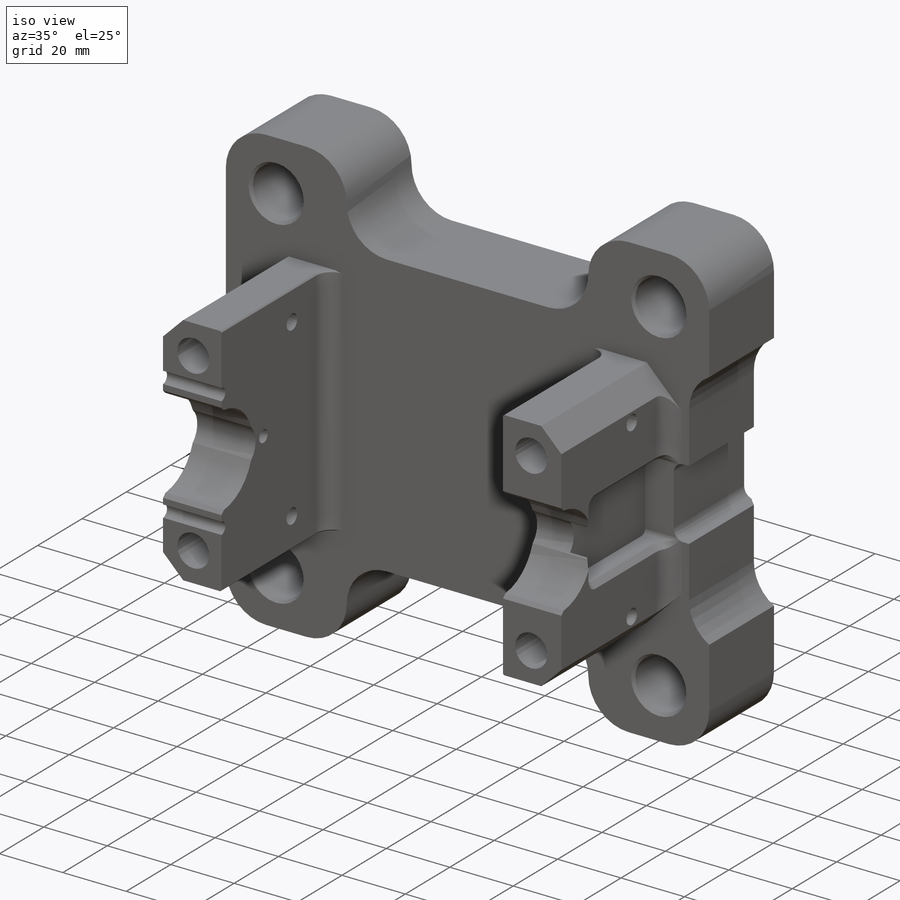
[diagram: iso view]
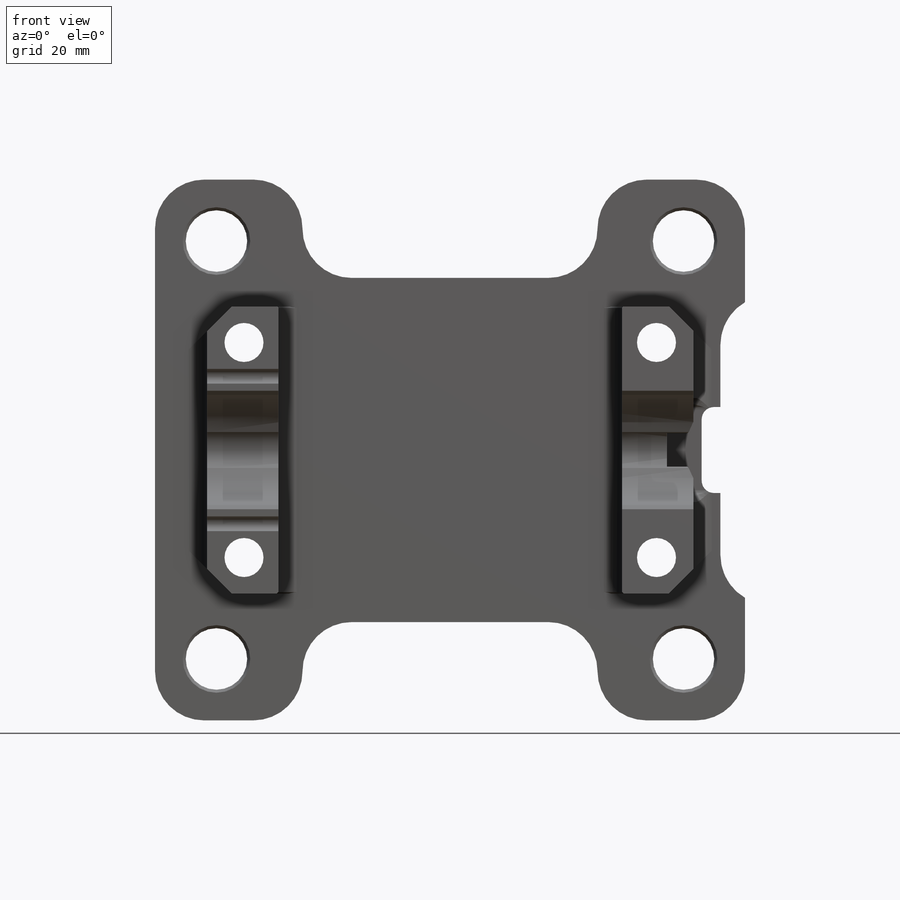
[diagram: front view]
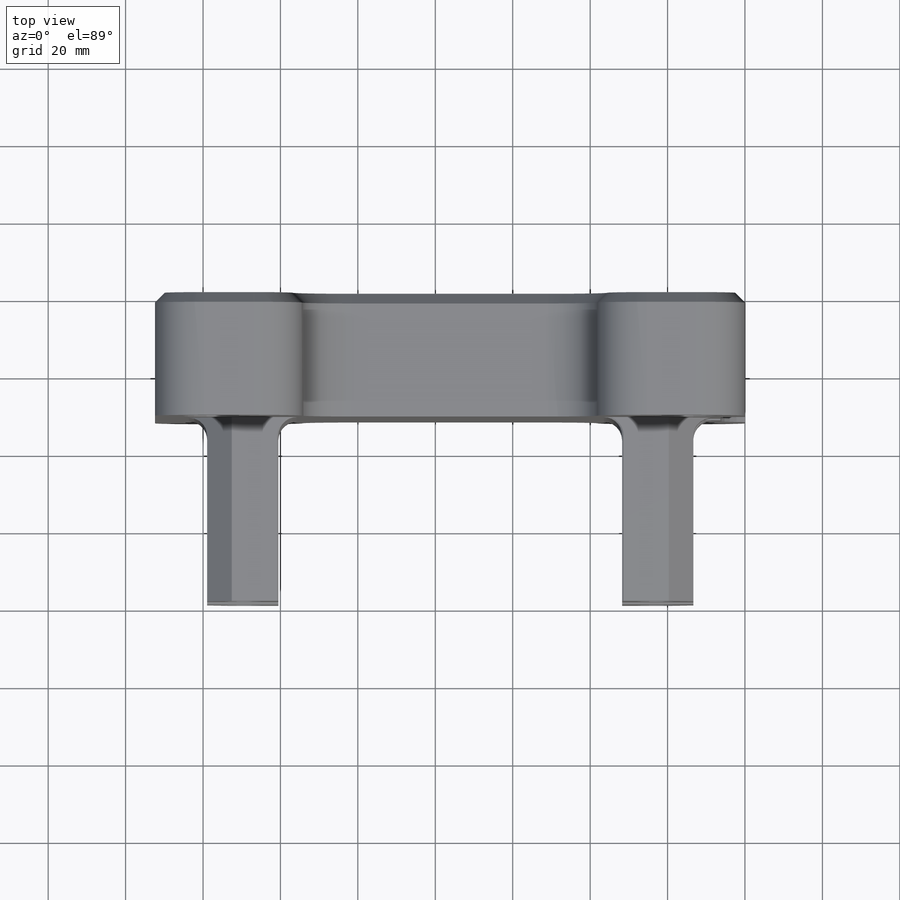
[diagram: top view]
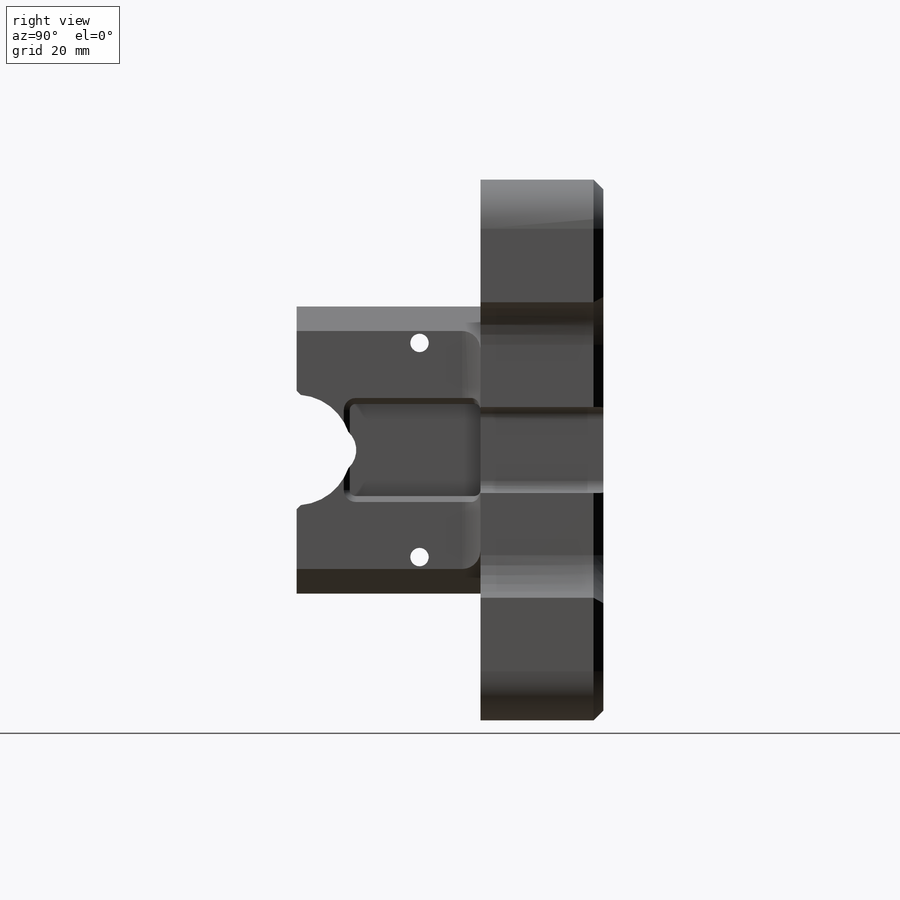
[diagram: right view]
SOLIDWORKS PART (.sldprt)
format: sldprt  version: not decoded by parser v0  size: 1,863,680 bytes
history: native  units: mm
features: sketch x17, hole x5, cut_extrude x5, chamfer x5, plane x4, extrude x2, fillet x2, material x1 (+12 scaffold rows collapsed)
feature tree (53):
  scaffold x12  (default folders/planes/origin — collapsed)
  material  "2024-T351 Al"
  plane  "XY"
  plane  "XZ"
  plane  "YZ"
  sketch  "Sketch49"  dims[D1=139.7mm D2=38.1mm D3=88.9mm D4=114.3mm D5=152.4mm]
  extrude  "Extrude7"  Depth=31.75mm
  sketch  "Sketch50"  dims[c1.D1=74.168mm c1.D2=12.7mm c1.D3=18.415mm c1.D4=88.773mm c2.D2=31.75mm]
  extrude  "Extrude8"  Depth=47.498mm
  hole  "5/8 (0.625) Diameter Hole1"  Diameter=15.875mm Depth=31.75mm
  sketch  "Sketch54"  dims[D1=15.875mm D2=107.95mm D3=120.65mm]
  sketch  "Sketch53"  dims[hole-wizard template sketch: 46 standard entries collapsed; hole parameters kept: c15.Thru Hole Dia.=15.875mm c15.Thru Hole Depth=31.75mm c15.Near C'Sink Dia.=17.4498mm c15.D4=~3.666174mm c15.Near C'Sink Angle=90.0deg c15.Far C'Sink Dia.=17.4498mm c15.D6=~9.919017mm c15.Far C'Sink Angle=90.0deg]
  fillet  "Fillet8"  Radius=12.7mm
  sketch  "Sketch57"  dims[c1.D2=12.7mm c1.D1=6.35mm c2.D2=~46.585698mm c2.D1=6.35mm c2.D3=54.356mm]
  cut_extrude  "Extrude9"  [1 undecoded]
  chamfer  "Chamfer1"  Distance=2.54mm Angle=45deg
  sketch  "Sketch58"  dims[D2=28.575mm D1=79.375mm]
  cut_extrude  "Extrude10"  [1 undecoded]
  sketch  "Sketch70"  dims[c1.D1=6.35mm c1.D2=6.35mm c2.D1=~9.804215mm c2.D2=2.032mm]
  cut_extrude  "Extrude13"  [1 undecoded]
  plane  "Plane1"  Offset=76.2mm
  chamfer  "Chamfer4"  Distance=6.35mm Angle=45deg
  fillet  "Fillet9"  Radius=4.7498mm
  hole  "#25 (0.1495) Diameter Hole1"  Diameter=3.7973mm Depth=18.415mm
  sketch  "Sketch72"  dims[D1=19.05mm]
  sketch  "Sketch71"  dims[hole-wizard template sketch: 47 standard entries collapsed; hole parameters kept: c15.Hole Depth=18.415mm c15.D3=~14.816244mm c15.Drill Angle=118.0deg]
  chamfer  "Chamfer5"  Distance=1.016mm Angle=45deg
  hole  "3/16 (0.1875) Diameter Hole1"  Diameter=4.7625mm Depth=18.415mm
  sketch  "Sketch74"  dims[D1=55.3212mm D2=31.75mm]
  sketch  "Sketch75"  dims[hole-wizard template sketch: 47 standard entries collapsed; hole parameters kept: c15.Hole Depth=18.415mm c15.D3=~14.816244mm c15.Drill Angle=118.0deg]
  hole  "3/16 (0.1875) Diameter Hole2"  Diameter=4.7625mm Depth=18.415mm
  sketch  "Sketch77"
  sketch  "Sketch76"  dims[hole-wizard template sketch: 47 standard entries collapsed; hole parameters kept: c15.Hole Depth=18.415mm c15.D3=~14.816244mm c15.Drill Angle=118.0deg]
  sketch  "Sketch78"  dims[D3=3.175mm D1=22.225mm D2=4.8387mm]
  cut_extrude  "Extrude14"  [1 undecoded]
  sketch  "Sketch79"  dims[c1.D4=1.5748mm c1.D1=27.94mm c1.D2=2.3622mm c1.D3=23.8252mm c2.D1=33.782mm]
  cut_extrude  "Cut-Extrude1"  Depth=6.858mm
  chamfer  "Chamfer6"  Distance=0.381mm Angle=45deg
  chamfer  "Chamfer7"  Distance=1.524mm Angle=45deg
  hole  "CBORE for 3/8 Socket Head Cap Screw1"  Diameter=10.0838mm Depth=79.248mm
  sketch  "Sketch82"  dims[D1=55.5498mm D2=22.86mm D3=106.553mm]
  sketch  "Sketch81"  dims[hole-wizard template sketch: 42 standard entries collapsed; hole parameters kept: c12.Thru Hole Depth=79.248mm c12.C'Bore Dia.=15.875mm c12.C'Bore Depth=25.4mm c12.Near C'Sink Dia.=17.145mm c12.D6=~4.399409mm c12.Near C'Sink Angle=90.0deg]
decode coverage: 31 of 36 modeling features carry decoded parameters
note: ~ marks probable driven/reference dimensions
note: 4 parameter values undecoded
summary: no parameter record found for 4 features; Diameter pulled from absorbed wizard sketch
note: suppression state not decoded; provenance and decode notes live in map.json
